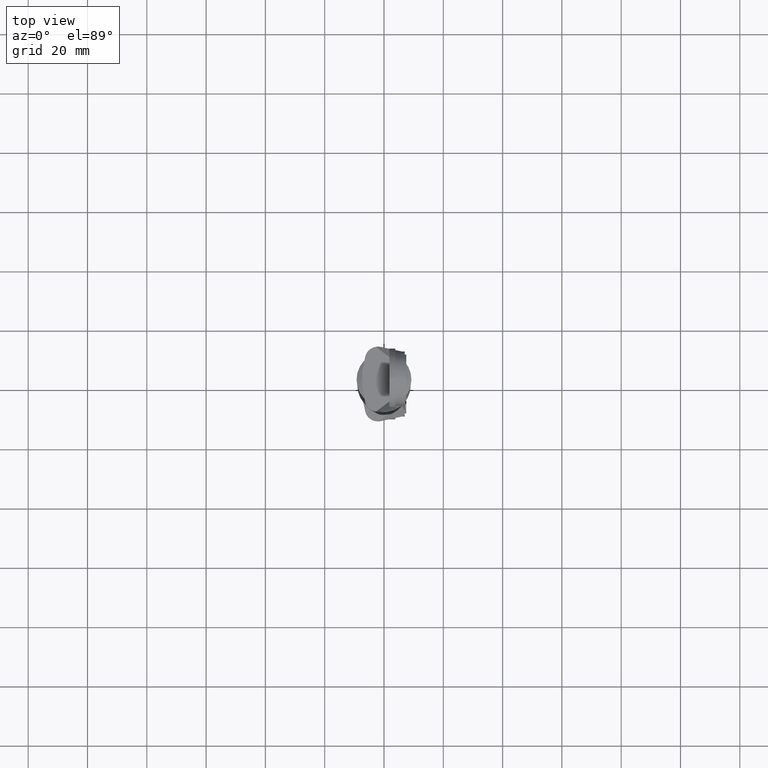
[diagram: clean part render]
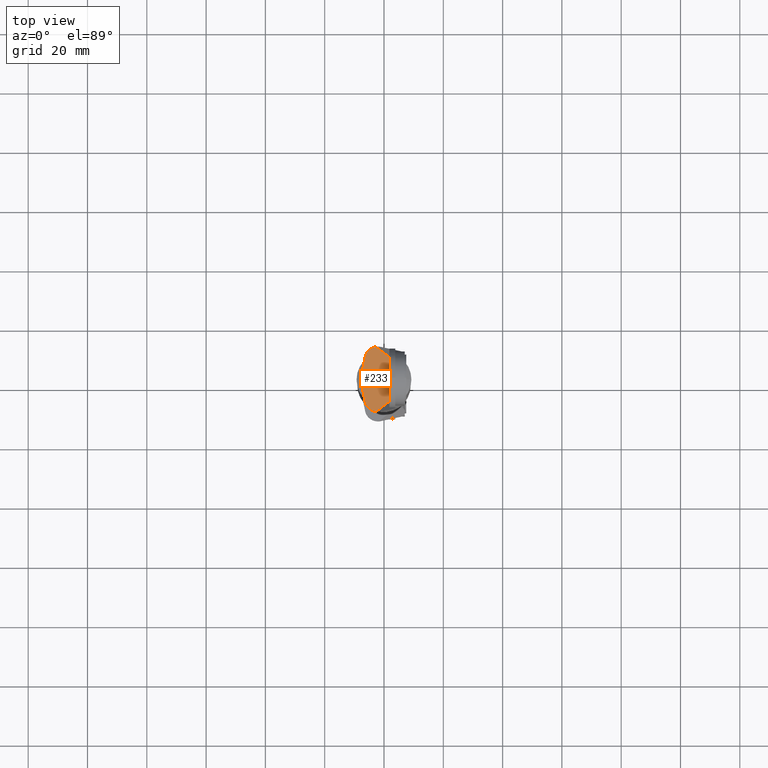
[diagram: same view with one face highlighted and labeled with its STEP entity id]
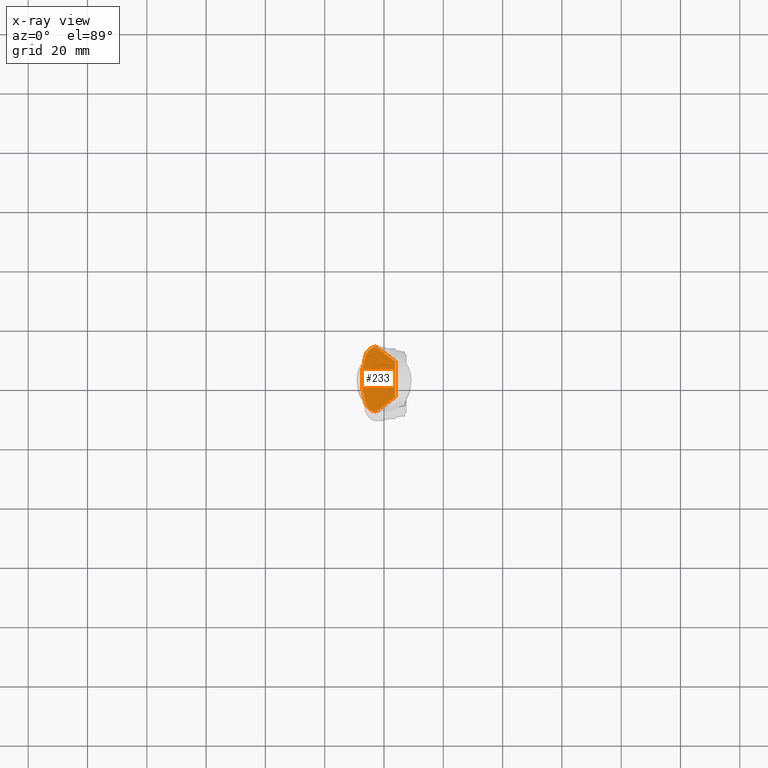
[diagram: x-ray of the same camera — body ghosted, the highlighted face saturated]
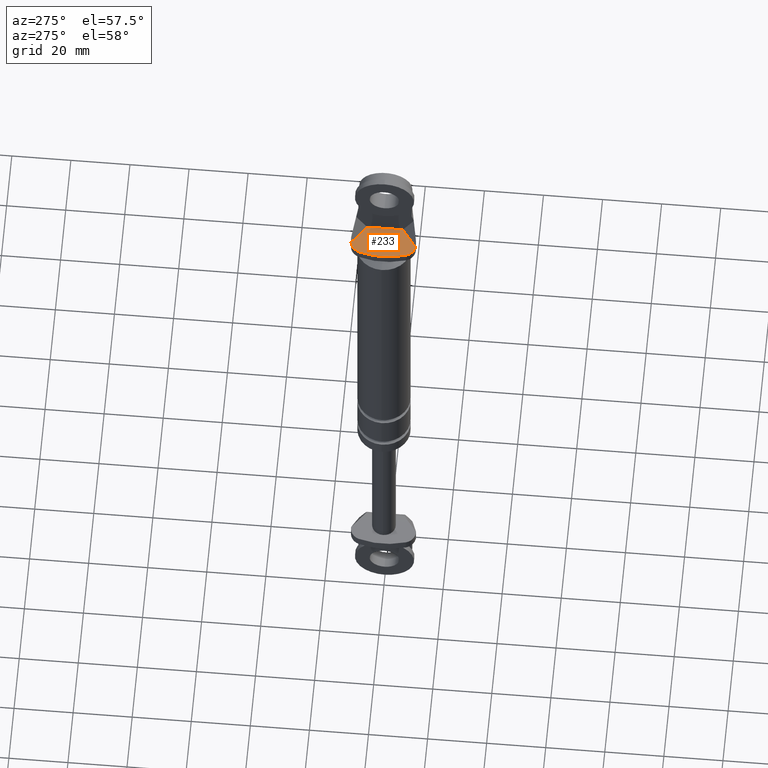
[diagram: same view with one face highlighted and labeled with its STEP entity id]
A machine part, top view. The second image highlights one B-rep face of the part: STEP entity #233.
The next image is the same camera in x-ray: the body ghosted, the highlighted face saturated — about 2% of this face is hidden behind the body in this view.
A second angle (auxiliary view) of the same face is appended — the face is thin or edge-on in the first view.
In plain terms, the highlighted planar face has unit normal (0, 0, -1).
Its self-contained STEP definition (entity closure, byte-faithful):
#233=ADVANCED_FACE('',(#584),#583,.F.);
#583=PLANE('',#1271);
#584=FACE_OUTER_BOUND('',#1272,.T.);
#1268=CARTESIAN_POINT('',(5.05814682001E+000,-1.31363496495E+001,9.21999850000E+001));
#1269=DIRECTION('',(0.00000000000E+000,0.00000000000E+000,-1.00000000000E+000));
#1270=DIRECTION('',(-1.00000000000E+000,0.00000000000E+000,0.00000000000E+000));
#1271=AXIS2_PLACEMENT_3D('',#1268,#1269,#1270);
#1272=EDGE_LOOP('',(#1900,#1901,#1902,#1903,#1904,#1905));
#1900=ORIENTED_EDGE('',*,*,#2214,.F.);
#1901=ORIENTED_EDGE('',*,*,#2246,.F.);
#1902=ORIENTED_EDGE('',*,*,#2247,.F.);
#1903=ORIENTED_EDGE('',*,*,#2225,.F.);
#1904=ORIENTED_EDGE('',*,*,#2215,.F.);
#1905=ORIENTED_EDGE('',*,*,#2201,.F.);
#2201=EDGE_CURVE('',#2642,#2649,#2650,.T.);
#2214=EDGE_CURVE('',#2729,#2642,#2736,.T.);
#2215=EDGE_CURVE('',#2649,#2742,#2743,.T.);
#2225=EDGE_CURVE('',#2742,#2808,#2809,.T.);
#2246=EDGE_CURVE('',#2942,#2729,#2949,.T.);
#2247=EDGE_CURVE('',#2808,#2942,#2955,.T.);
#2642=VERTEX_POINT('',#3857);
#2649=VERTEX_POINT('',#3861);
#2650=CIRCLE('',#3865,2.63230550000E+001);
#2729=VERTEX_POINT('',#3910);
#2736=CIRCLE('',#3917,4.39713591772E+000);
#2742=VERTEX_POINT('',#3918);
#2743=CIRCLE('',#3922,4.39713591772E+000);
#2808=VERTEX_POINT('',#3955);
#2809=LINE('',#3956,#3957);
#2942=VERTEX_POINT('',#4044);
#2949=LINE('',#4048,#4049);
#2955=LINE('',#4051,#4052);
#3857=CARTESIAN_POINT('',(-6.27804299844E+000,-7.92703620510E+000,9.21999850000E+001));
#3861=CARTESIAN_POINT('',(-6.27804299844E+000,7.92703620510E+000,9.21999850000E+001));
#3862=CARTESIAN_POINT('',(1.88230590000E+001,1.25154769361E-014,9.21999850000E+001));
#3863=DIRECTION('',(0.00000000000E+000,0.00000000000E+000,-1.00000000000E+000));
#3864=DIRECTION('',(1.00000000000E+000,-0.00000000000E+000,-0.00000000000E+000));
#3865=AXIS2_PLACEMENT_3D('',#3862,#3863,#3864);
#3910=CARTESIAN_POINT('',(-2.76594820790E+000,-1.09469580412E+001,9.21999850000E+001));
#3914=CARTESIAN_POINT('',(-2.08502827535E+000,-6.60286408228E+000,9.21999850000E+001));
#3915=DIRECTION('',(0.00000000000E+000,0.00000000000E+000,-1.00000000000E+000));
#3916=DIRECTION('',(1.00000000000E+000,-0.00000000000E+000,-0.00000000000E+000));
#3917=AXIS2_PLACEMENT_3D('',#3914,#3915,#3916);
#3918=CARTESIAN_POINT('',(-2.76594820790E+000,1.09469580413E+001,9.21999850000E+001));
#3919=CARTESIAN_POINT('',(-2.08502827535E+000,6.60286408228E+000,9.21999850000E+001));
#3920=DIRECTION('',(0.00000000000E+000,0.00000000000E+000,-1.00000000000E+000));
#3921=DIRECTION('',(1.00000000000E+000,-0.00000000000E+000,-0.00000000000E+000));
#3922=AXIS2_PLACEMENT_3D('',#3919,#3920,#3921);
#3955=CARTESIAN_POINT('',(3.80000300000E+000,6.00000000000E+000,9.21999850000E+001));
#3956=CARTESIAN_POINT('',(-2.76594820790E+000,1.09469580413E+001,9.21999850000E+001));
#3957=VECTOR('',#3958,8.22095548744E+000);
#3958=DIRECTION('',(7.98684680623E-001,-6.01749766047E-001,0.00000000000E+000));
#4044=CARTESIAN_POINT('',(3.80000300000E+000,-6.00000000000E+000,9.21999850000E+001));
#4048=CARTESIAN_POINT('',(3.80000300000E+000,-6.00000000000E+000,9.21999850000E+001));
#4049=VECTOR('',#4050,8.22095548744E+000);
#4050=DIRECTION('',(-7.98684680623E-001,-6.01749766047E-001,0.00000000000E+000));
#4051=CARTESIAN_POINT('',(3.80000300000E+000,6.00000000000E+000,9.21999850000E+001));
#4052=VECTOR('',#4053,1.20000000000E+001);
#4053=DIRECTION('',(0.00000000000E+000,-1.00000000000E+000,0.00000000000E+000));